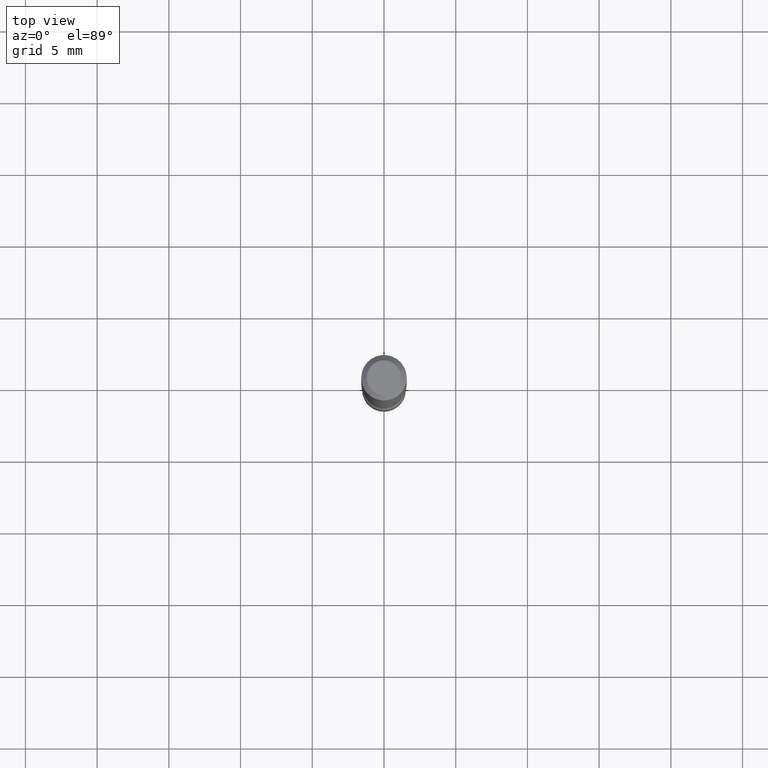
[diagram: clean part render]
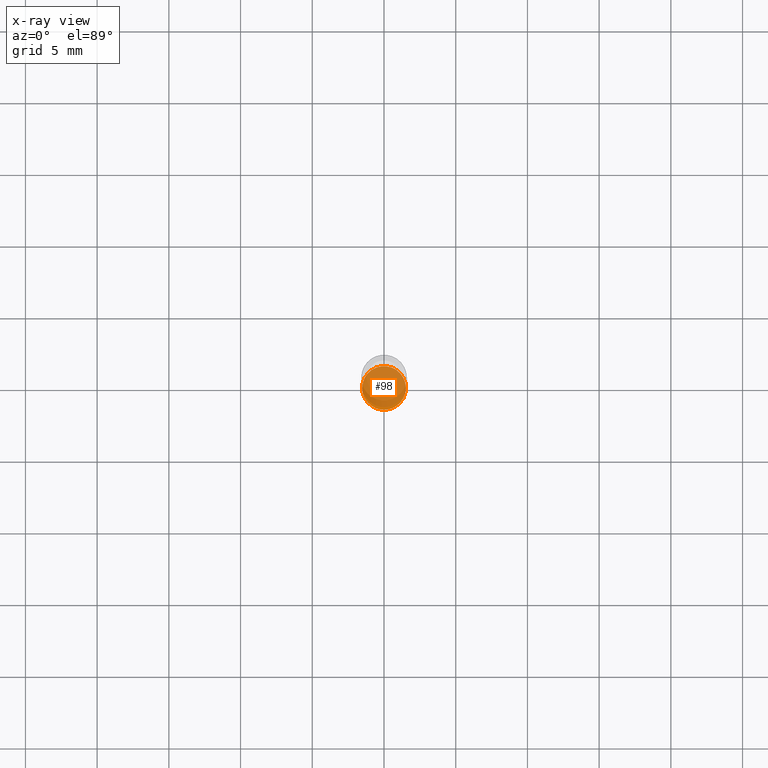
[diagram: x-ray — body ghosted, one internal face saturated and labeled with its STEP entity id]
A machine part, top view, then the same camera in x-ray: the body is ghosted and one INTERNAL B-rep face — a face not visible from any outside direction — is saturated and labeled: STEP entity #98.
In plain terms, the highlighted planar face has unit normal (-0, 0, 1).
Its self-contained STEP definition (entity closure, byte-faithful):
#8 = DIRECTION ( 'NONE',  ( 1.000000000000000000, -6.982962677686265922E-15, 4.876176775795935793E-29 ) ) ;
#66 = ORIENTED_EDGE ( 'NONE', *, *, #530, .F. ) ;
#91 = CARTESIAN_POINT ( 'NONE',  ( 4.010568842143624288E-29, -5.726029395702758897E-15, -1.639999999999999902 ) ) ;
#93 = DIRECTION ( 'NONE',  ( 1.000000000000000000, -6.982962677686268288E-15, 0.000000000000000000 ) ) ;
#98 = ADVANCED_FACE ( 'NONE', ( #512 ), #186, .F. ) ;
#115 = ORIENTED_EDGE ( 'NONE', *, *, #383, .F. ) ;
#142 = AXIS2_PLACEMENT_3D ( 'NONE', #314, #316, #93 ) ;
#170 = AXIS2_PLACEMENT_3D ( 'NONE', #235, #397, #8 ) ;
#186 = PLANE ( 'NONE',  #170 ) ;
#193 = CIRCLE ( 'NONE', #142, 0.05999999999999999778 ) ;
#235 = CARTESIAN_POINT ( 'NONE',  ( 4.189777606612160768E-16, 0.05999999999999427319, -1.640000000000000346 ) ) ;
#256 = VERTEX_POINT ( 'NONE', #350 ) ;
#278 = DIRECTION ( 'NONE',  ( 1.000000000000000000, -6.982962677686268288E-15, 0.000000000000000000 ) ) ;
#282 = DIRECTION ( 'NONE',  ( -2.445468806185136597E-29, 3.491481338843145583E-15, 1.000000000000000000 ) ) ;
#287 = CIRCLE ( 'NONE', #416, 0.05999999999999999778 ) ;
#314 = CARTESIAN_POINT ( 'NONE',  ( 4.010568842143624288E-29, -5.726029395702758897E-15, -1.639999999999999902 ) ) ;
#316 = DIRECTION ( 'NONE',  ( -2.445468806185136597E-29, 3.491481338843145583E-15, 1.000000000000000000 ) ) ;
#335 = VERTEX_POINT ( 'NONE', #419 ) ;
#350 = CARTESIAN_POINT ( 'NONE',  ( -0.06000000000000001166, -5.299703754246698407E-15, -1.639999999999999902 ) ) ;
#383 = EDGE_CURVE ( 'NONE', #335, #256, #287, .T. ) ;
#392 = EDGE_LOOP ( 'NONE', ( #115, #66 ) ) ;
#397 = DIRECTION ( 'NONE',  ( -2.438088387897960049E-29, 3.491481338843145188E-15, 1.000000000000000000 ) ) ;
#416 = AXIS2_PLACEMENT_3D ( 'NONE', #91, #282, #278 ) ;
#419 = CARTESIAN_POINT ( 'NONE',  ( 0.06000000000000001166, -6.145007156363934742E-15, -1.639999999999999902 ) ) ;
#512 = FACE_OUTER_BOUND ( 'NONE', #392, .T. ) ;
#530 = EDGE_CURVE ( 'NONE', #256, #335, #193, .T. ) ;